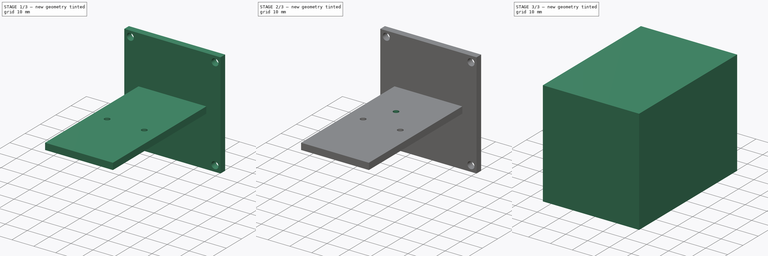
[diagram: build sequence overview — one tinted view per stage of 3, left to right]
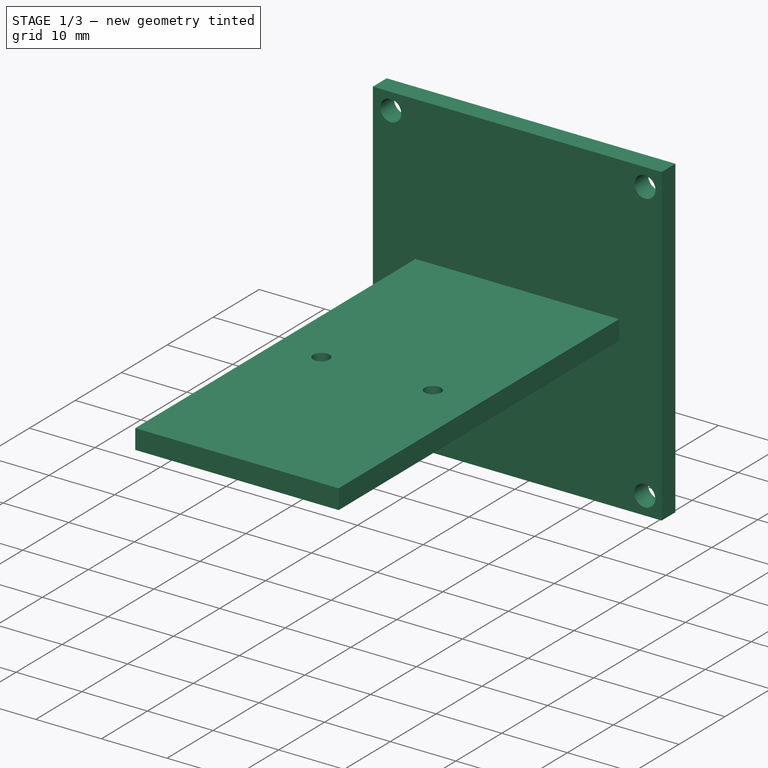
[diagram: stage 1 of 3 — iso view after this stage's code; geometry added in this stage tinted green]
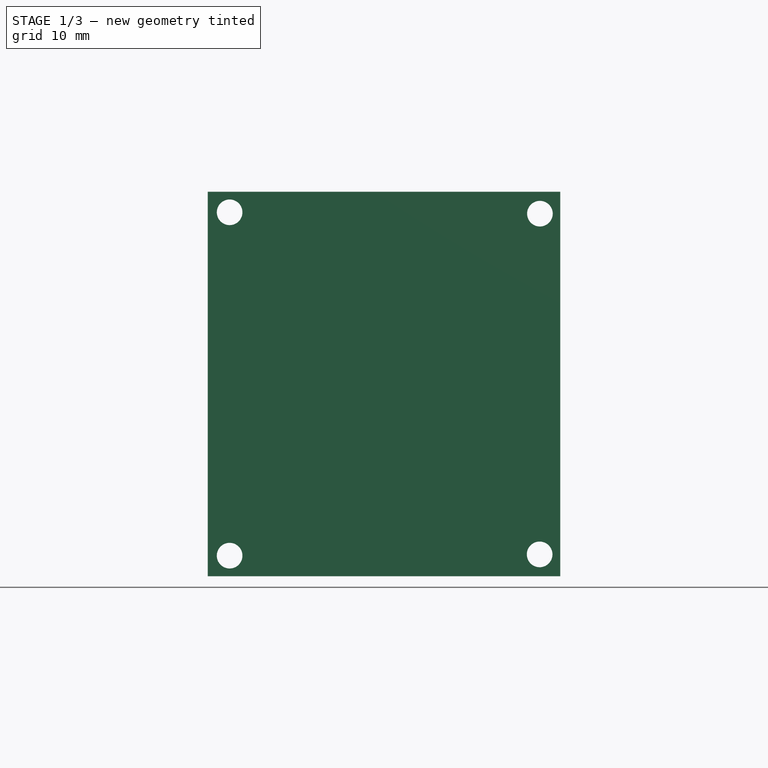
[diagram: stage 1 of 3 — front view after this stage's code; geometry added in this stage tinted green]
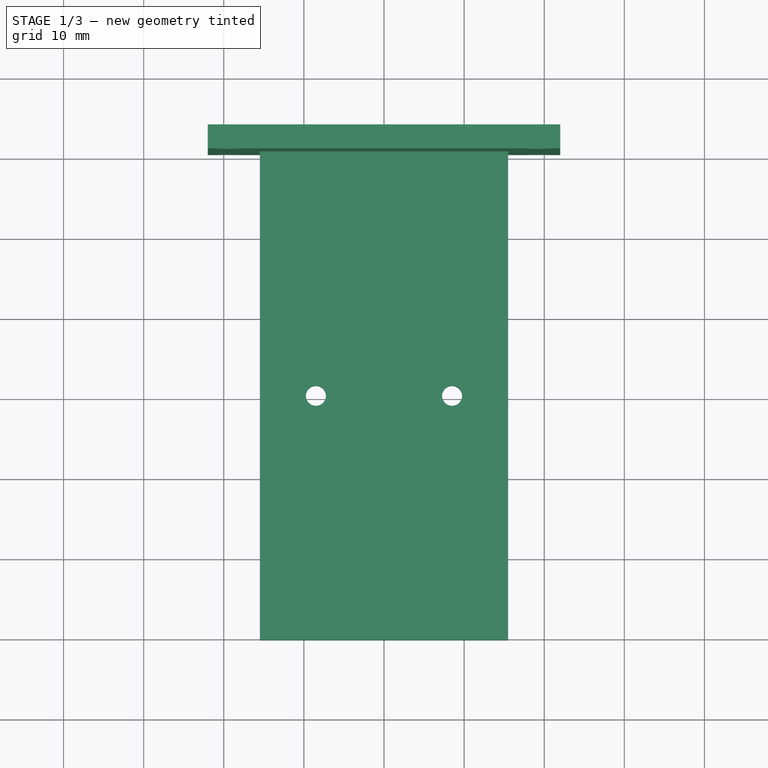
[diagram: stage 1 of 3 — top view after this stage's code; geometry added in this stage tinted green]
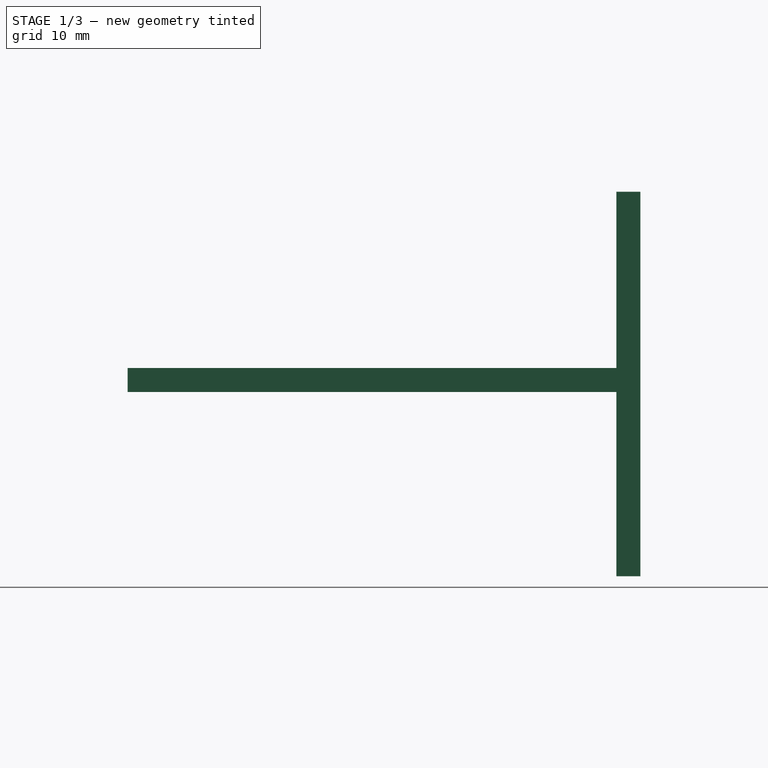
[diagram: stage 1 of 3 — right view after this stage's code; geometry added in this stage tinted green]
FCSTD DOCUMENT  (FreeCAD 1.0R39319 (Git))
Label: obudowa_zewn
License: All rights reserved
LicenseURL: https://en.wikipedia.org/wiki/All_rights_reserved
objects: Sketcher::SketchObject×8, PartDesign::SubShapeBinder×6, PartDesign::Pad×5, Part::Feature×3, PartDesign::Pocket×3, PartDesign::Body×2
note: 51 computed .brp shape members not serialized (recipe doc carries the construction recipe); baked Part::Feature solids carry a one-line shape summary decoded from their .brp

FEATURE [Part::Feature] Solid  label="Body"
  shape: bbox 35 x 61 x 16 mm, 126 faces (baked)
FEATURE [Part::Feature] Feature  label="stacja_pogodowa"
  Placement = pos=(83,40,-5) rot=(0,1,0;3.14159rad)
  shape: bbox 30.16 x 32 x 20.75 mm, 1912 faces, 90 solids (baked)
FEATURE [PartDesign::SubShapeBinder] Binder
  BindCopyOnChange = 0
  BindMode = 0
  ClaimChildren = false
  Context = -> Body [Binder.]
  Fuse = false
  MakeFace = true
  OffsetFill = false
  OffsetIntersection = false
  OffsetJoinType = 0
  OffsetOpenResult = false
  PartialLoad = false
  Refine = true
  Relative = true
  Support = -> [Solid[Face43]]
  _Version = 2
FEATURE [PartDesign::SubShapeBinder] Binder001
  BindCopyOnChange = 0
  BindMode = 0
  ClaimChildren = false
  Context = -> Body [Binder001.]
  Fuse = false
  MakeFace = true
  OffsetFill = false
  OffsetIntersection = false
  OffsetJoinType = 0
  OffsetOpenResult = false
  PartialLoad = false
  Refine = true
  Relative = true
  Support = -> [Feature[Edge4643]]
  _Version = 2
FEATURE [Sketcher::SketchObject] Sketch
  ArcFitTolerance = 1e-06
  AttachmentSupport = -> [Binder]
  ExternalGeometry = -> [Binder,Binder001]
  FullyConstrained = false
  MakeInternals = false
  MapMode = 5
  Placement = pos=(0,0,0) rot=(1,0,0;3.14159rad)
  sketch-geometry (15):
    g0: GeomPoint [constr] X=8.5 Y=0 Z=0
    g1: LineSegment [constr] StartX=17.5 StartY=28.5 StartZ=0 EndX=17.5 EndY=-28.5 EndZ=0
    g2: LineSegment [constr] StartX=-17.5 StartY=-28.5 StartZ=0 EndX=-17.5 EndY=28.5 EndZ=0
    g3: GeomPoint [constr] X=-8.5 Y=0 Z=0
    g4: Circle CenterX=-8.5 CenterY=0 CenterZ=0 NormalX=0 NormalY=0 NormalZ=1 AngleXU=0 Radius=1.25
    g5: Circle CenterX=8.5 CenterY=0 CenterZ=0 NormalX=0 NormalY=0 NormalZ=1 AngleXU=0 Radius=1.25
    g6: LineSegment StartX=-15.5 StartY=28.5 StartZ=0 EndX=-15.5 EndY=-28.5 EndZ=0
    g7: LineSegment StartX=15.5 StartY=-28.5 StartZ=0 EndX=15.5 EndY=28.5 EndZ=0
    g8: Circle [constr] CenterX=-2.2 CenterY=-12.5 CenterZ=0 NormalX=0 NormalY=0 NormalZ=1 AngleXU=0 Radius=1.25
    g9: LineSegment StartX=-15.5 StartY=-28.5 StartZ=0 EndX=-15.5 EndY=-30.5 EndZ=0
    g10: LineSegment StartX=15.5 StartY=-28.5 StartZ=0 EndX=15.5 EndY=-30.5 EndZ=0
    g11: LineSegment StartX=-15.5 StartY=-30.5 StartZ=0 EndX=15.5 EndY=-30.5 EndZ=0
    g12: LineSegment StartX=-15.5 StartY=28.5 StartZ=0 EndX=-15.5 EndY=30.5 EndZ=0
    g13: LineSegment StartX=15.5 StartY=28.5 StartZ=0 EndX=15.5 EndY=30.5 EndZ=0
    g14: LineSegment StartX=-15.5 StartY=30.5 StartZ=0 EndX=15.5 EndY=30.5 EndZ=0
  constraints (25):
    c: PointOnObject(g0,g-1)
    c: Coincident(g1,g-3)
    c: Coincident(g1,g-3)
    c: Coincident(g2,g-5)
    c: Coincident(g2,g-5)
    c: Distance(g0,g1) = 9
    c: PointOnObject(g3,g-1)
    c: Distance(g3,g2) = 9
    c: Diameter(g4) = 2.5
    c: Coincident(g4,g3)
    c: Diameter(g5) = 2.5
    c: Coincident(g5,g0)
    c: Vertical(g6)
    c: Vertical(g7)
    c: Coincident(g6,g-7)
    c: Diameter(g8) = 2.5
    c: Coincident(g8,g-10)
    c: Coincident(g9,g6)
    c: Coincident(g9,g-4)
    c: Coincident(g10,g-9)
    c: Coincident(g12,g6)
    c: Coincident(g12,g-7)
    c: Coincident(g13,g7)
    c: Coincident(g13,g-8)
    c: Vertical(g13)
FEATURE [PartDesign::Pad] Pad
  Direction = (0,0,-1)
  Length = 3
  Length2 = 10
  Profile = -> Sketch
  ReferenceAxis = -> Sketch [N_Axis]
  Refine = true
  Suppressed = false
  Type = 0
FEATURE [PartDesign::SubShapeBinder] Binder002
  BindCopyOnChange = 0
  BindMode = 0
  ClaimChildren = false
  Context = -> Body [Binder002.]
  Fuse = false
  MakeFace = true
  OffsetFill = false
  OffsetIntersection = false
  OffsetJoinType = 0
  OffsetOpenResult = false
  PartialLoad = false
  Refine = true
  Relative = true
  Support = -> [Feature[Face183]]
  _Version = 2
FEATURE [PartDesign::SubShapeBinder] Binder003
  BindCopyOnChange = 0
  BindMode = 0
  ClaimChildren = false
  Context = -> Body [Binder003.]
  Fuse = false
  MakeFace = true
  OffsetFill = false
  OffsetIntersection = false
  OffsetJoinType = 0
  OffsetOpenResult = false
  PartialLoad = false
  Refine = true
  Relative = true
  Support = -> [Feature[Edge1314]]
  _Version = 2
FEATURE [Sketcher::SketchObject] Sketch002
  ArcFitTolerance = 1e-06
  AttachmentSupport = -> [Pad]
  ExternalGeometry = -> [Binder002,Binder003]
  FullyConstrained = true
  MakeInternals = false
  MapMode = 5
  Placement = pos=(0,30.5,0) rot=(0,0.707107,0.707107;3.14159rad)
  sketch-geometry (9):
    g0: LineSegment [constr] StartX=0 StartY=0 StartZ=0 EndX=0 EndY=22 EndZ=0
    g1: LineSegment [constr] StartX=0 StartY=0 StartZ=0 EndX=0 EndY=-26 EndZ=0
    g2: LineSegment [constr] StartX=0 StartY=22 StartZ=0 EndX=20 EndY=22 EndZ=0
    g3: LineSegment [constr] StartX=0 StartY=22 StartZ=0 EndX=-22 EndY=22 EndZ=0
    g4: LineSegment [constr] StartX=0 StartY=-26 StartZ=0 EndX=22 EndY=-26 EndZ=0
    g5: LineSegment StartX=-22 StartY=22 StartZ=0 EndX=-22 EndY=-26 EndZ=0
    g6: LineSegment StartX=-22 StartY=-26 StartZ=0 EndX=22 EndY=-26 EndZ=0
    g7: LineSegment StartX=22 StartY=-26 StartZ=0 EndX=22 EndY=22 EndZ=0
    g8: LineSegment StartX=22 StartY=22 StartZ=0 EndX=-22 EndY=22 EndZ=0
  constraints (25):
    c: Distance(g0) = 22
    c: Coincident(g0,g-1)
    c: PointOnObject(g0,g-2)
    c: Distance(g1) = 26
    c: Coincident(g1,g0)
    c: PointOnObject(g1,g-2)
    c: Distance(g2) = 20
    c: Coincident(g2,g0)
    c: Horizontal(g2)
    c: Distance(g3) = 22
    c: Coincident(g3,g0)
    c: Horizontal(g3)
    c: Distance(g4) = 22
    c: Coincident(g4,g1)
    c: Horizontal(g4)
    c: Coincident(g5,g6)
    c: Coincident(g6,g7)
    c: Coincident(g7,g8)
    c: Coincident(g8,g5)
    c: Vertical(g5)
    c: Vertical(g7)
    c: Horizontal(g6)
    c: Horizontal(g8)
    c: Coincident(g5,g3)
    c: Coincident(g6,g4)
FEATURE [PartDesign::Pad] Pad001
  BaseFeature = -> Pad
  Direction = (0,1,-2e-16)
  Length = 3
  Length2 = 10
  Profile = -> Sketch002
  ReferenceAxis = -> Sketch002 [N_Axis]
  Refine = true
  Suppressed = false
  Type = 0
FEATURE [PartDesign::Body] Body001  label="obudowa"
  AllowCompound = false
  Group = -> [Binder004,Sketch003,Pad002,Sketch004,Pad003,Sketch005,Pocket]
  Origin = -> Origin001
  Tip = -> Pocket
FEATURE [PartDesign::SubShapeBinder] Binder005
  BindCopyOnChange = 0
  BindMode = 0
  ClaimChildren = false
  Context = -> Body [Binder005.]
  Fuse = false
  MakeFace = true
  OffsetFill = false
  OffsetIntersection = false
  OffsetJoinType = 0
  OffsetOpenResult = false
  PartialLoad = false
  Refine = true
  Relative = true
  Support = -> [Solid001[Face1]]
  _Version = 2
FEATURE [Sketcher::SketchObject] Sketch006
  ArcFitTolerance = 1e-06
  AttachmentSupport = -> [Pad001]
  ExternalGeometry = -> [Binder005]
  FullyConstrained = true
  MakeInternals = false
  MapMode = 5
  Placement = pos=(0,30.5,0) rot=(1,0,0;1.5708rad)
  sketch-geometry (4):
    g0: Circle CenterX=-19.2712 CenterY=19.4324 CenterZ=0 NormalX=0 NormalY=0 NormalZ=1 AngleXU=0 Radius=1.6
    g1: Circle CenterX=19.4624 CenterY=19.2604 CenterZ=0 NormalX=0 NormalY=0 NormalZ=1 AngleXU=0 Radius=1.6
    g2: Circle CenterX=19.4284 CenterY=-23.2712 CenterZ=0 NormalX=0 NormalY=0 NormalZ=1 AngleXU=0 Radius=1.6
    g3: Circle CenterX=-19.2712 CenterY=-23.4284 CenterZ=0 NormalX=0 NormalY=0 NormalZ=1 AngleXU=0 Radius=1.6
  constraints (8):
    c: Diameter(g0) = 3.2
    c: Coincident(g0,g-3)
    c: Diameter(g1) = 3.2
    c: Coincident(g1,g-4)
    c: Diameter(g2) = 3.2
    c: Coincident(g2,g-5)
    c: Diameter(g3) = 3.2
    c: Coincident(g3,g-6)
FEATURE [PartDesign::Pocket] Pocket001
  BaseFeature = -> Pad001
  Direction = (0,1,-2e-16)
  Length = 3
  Length2 = 5
  Profile = -> Sketch006
  ReferenceAxis = -> Sketch006 [N_Axis]
  Refine = true
  Suppressed = false
  Type = 0
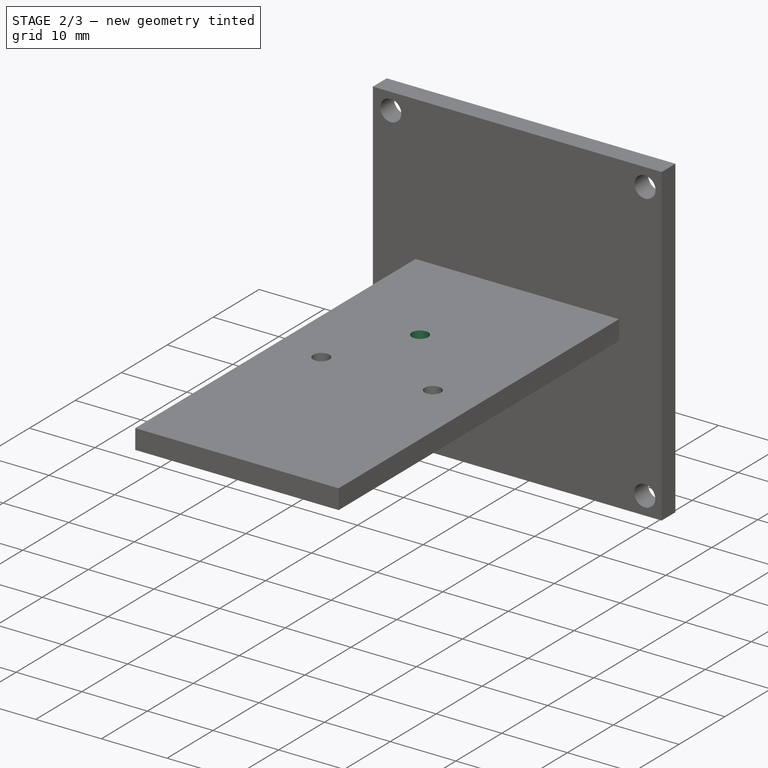
[diagram: stage 2 of 3 — iso view after this stage's code; geometry added in this stage tinted green]
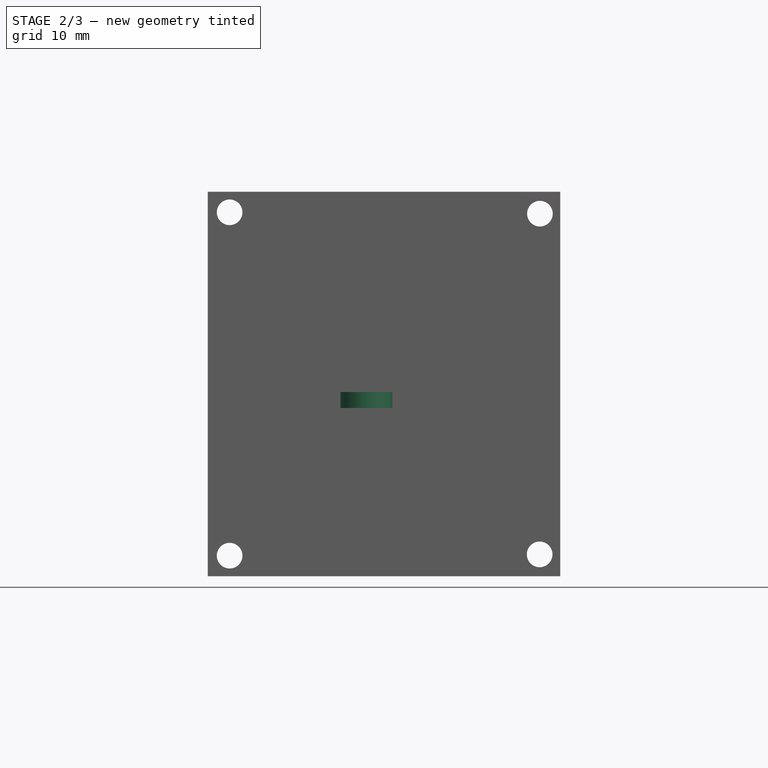
[diagram: stage 2 of 3 — front view after this stage's code; geometry added in this stage tinted green]
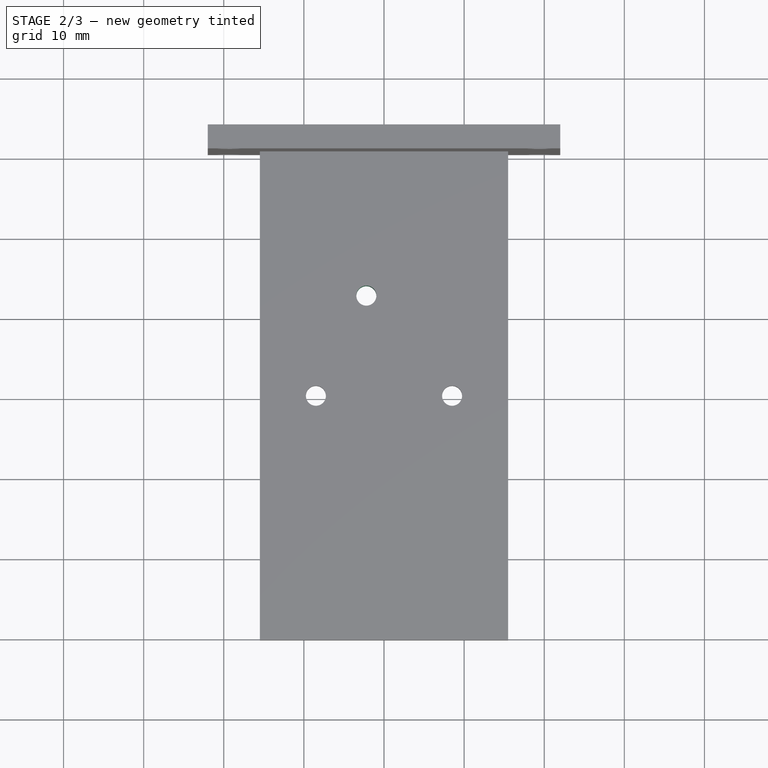
[diagram: stage 2 of 3 — top view after this stage's code; geometry added in this stage tinted green]
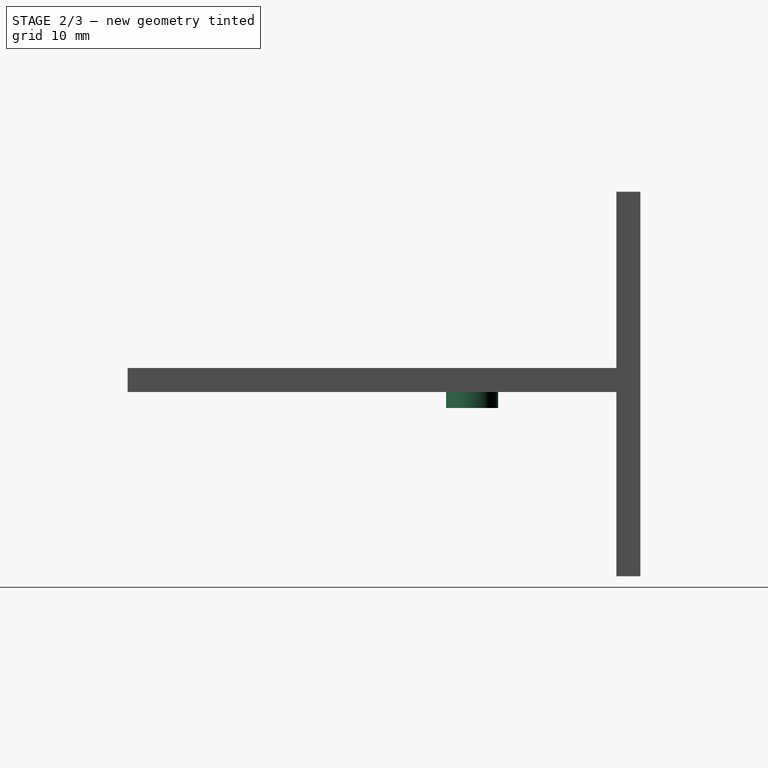
[diagram: stage 2 of 3 — right view after this stage's code; geometry added in this stage tinted green]
FEATURE [Part::Feature] Solid001  label="obudowa001"
  shape: bbox 44 x 64 x 48 mm, 23 faces (baked)
FEATURE [Sketcher::SketchObject] Sketch007
  ArcFitTolerance = 1e-06
  AttachmentSupport = -> [Pocket001]
  ExternalGeometry = -> [Binder001]
  FullyConstrained = true
  MakeInternals = false
  MapMode = 5
  Placement = pos=(0,0,-3) rot=(1,0,0;3.14159rad)
  sketch-geometry (1):
    g0: Circle CenterX=-2.2 CenterY=-12.5 CenterZ=0 NormalX=0 NormalY=0 NormalZ=1 AngleXU=0 Radius=3.25
  constraints (2):
    c: Diameter(g0) = 6.5
    c: Coincident(g0,g-3)
FEATURE [PartDesign::Pad] Pad004
  BaseFeature = -> Pocket001
  Direction = (0,0,-1)
  Length = 2
  Length2 = 10
  Profile = -> Sketch007
  ReferenceAxis = -> Sketch007 [N_Axis]
  Refine = true
  Suppressed = false
  Type = 0
FEATURE [Sketcher::SketchObject] Sketch008
  ArcFitTolerance = 1e-06
  AttachmentSupport = -> [Pad004]
  ExternalGeometry = -> [Binder001]
  FullyConstrained = true
  MakeInternals = false
  MapMode = 5
  Placement = pos=(0,0,-5) rot=(1,0,0;3.14159rad)
  sketch-geometry (1):
    g0: Circle CenterX=-2.2 CenterY=-12.5 CenterZ=0 NormalX=0 NormalY=0 NormalZ=1 AngleXU=0 Radius=1.25
  constraints (2):
    c: Diameter(g0) = 2.5
    c: Coincident(g0,g-3)
FEATURE [PartDesign::Pocket] Pocket002
  BaseFeature = -> Pad004
  Direction = (0,0,1)
  Length = 5
  Length2 = 5
  Profile = -> Sketch008
  ReferenceAxis = -> Sketch008 [N_Axis]
  Refine = true
  Suppressed = false
  Type = 0
FEATURE [PartDesign::Body] Body  label="Zawartość"
  AllowCompound = false
  Group = -> [Binder,Sketch,Binder001,Pad,Binder002,Sketch002,Pad001,Binder003,Binder005,Sketch006,Pocket001,Sketch007,Pad004,Sketch008,Pocket002]
  Origin = -> Origin
  Tip = -> Pocket002
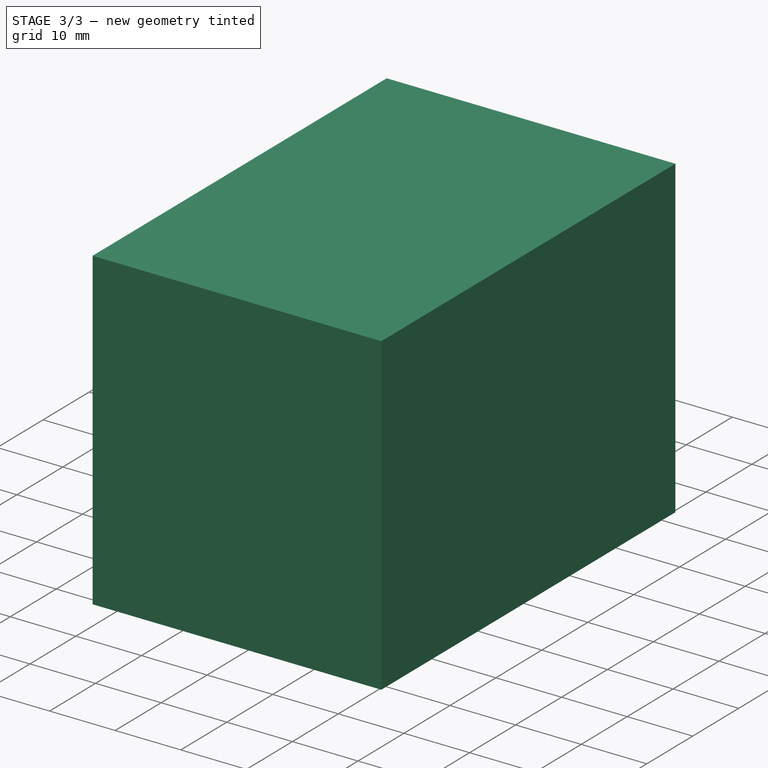
[diagram: stage 3 of 3 — iso view after this stage's code; geometry added in this stage tinted green]
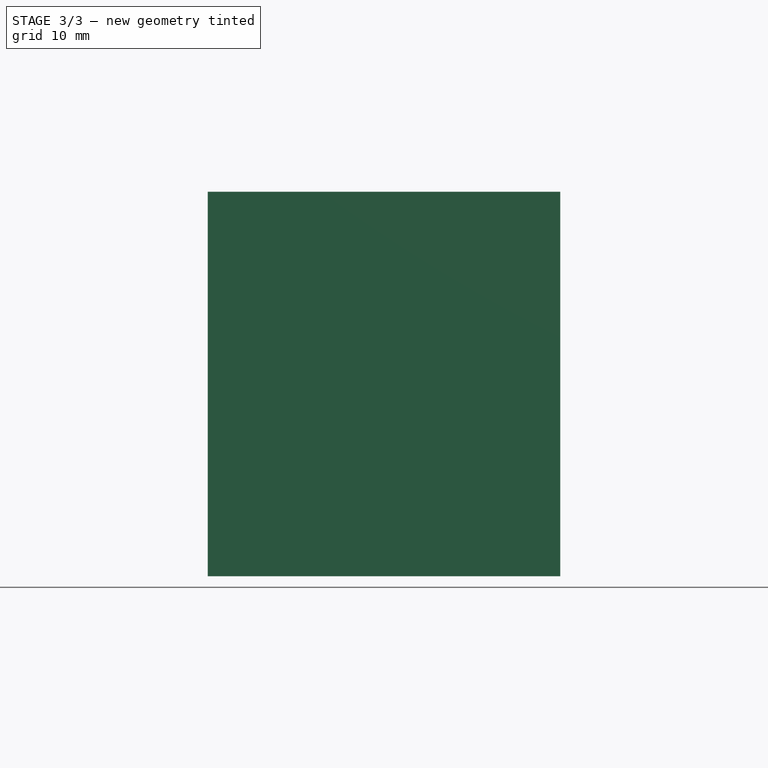
[diagram: stage 3 of 3 — front view after this stage's code; geometry added in this stage tinted green]
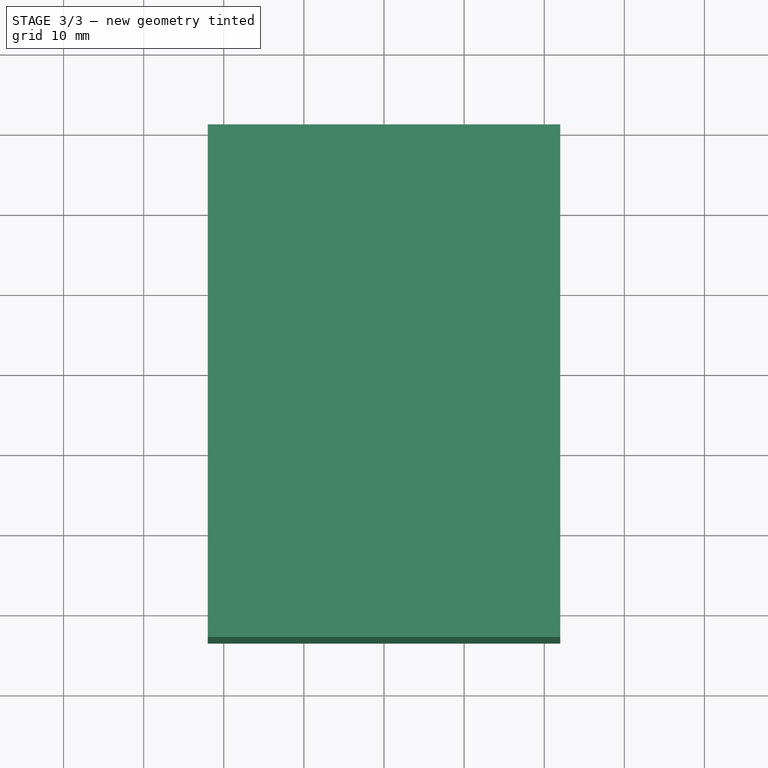
[diagram: stage 3 of 3 — top view after this stage's code; geometry added in this stage tinted green]
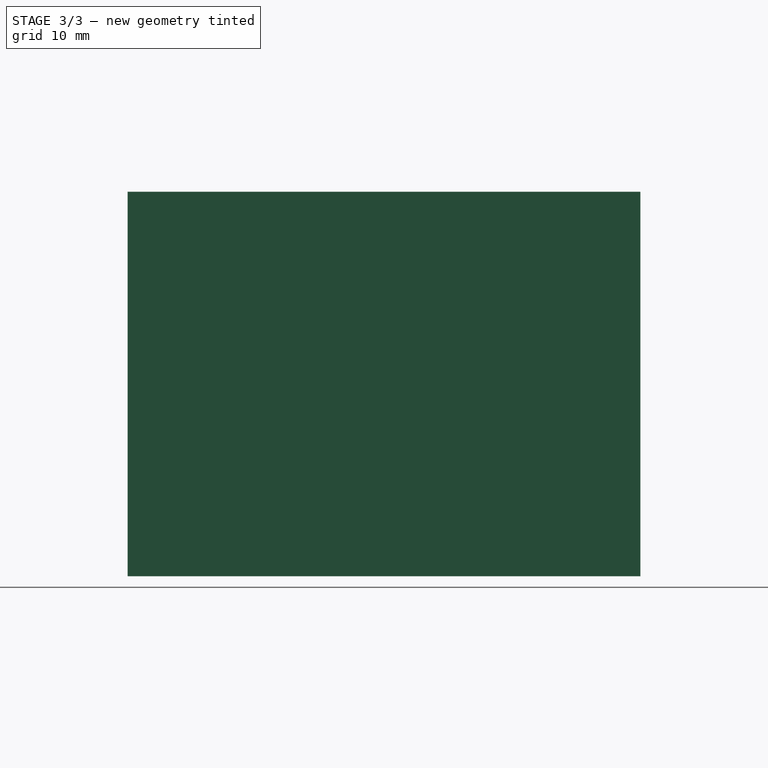
[diagram: stage 3 of 3 — right view after this stage's code; geometry added in this stage tinted green]
FEATURE [PartDesign::SubShapeBinder] Binder004
  BindCopyOnChange = 0
  BindMode = 0
  ClaimChildren = false
  Context = -> Body001 [Binder004.]
  Fuse = false
  MakeFace = true
  OffsetFill = false
  OffsetIntersection = false
  OffsetJoinType = 0
  OffsetOpenResult = false
  PartialLoad = false
  Refine = true
  Relative = true
  Support = -> [Body[Pad001.Face3]]
  _Version = 2
FEATURE [Sketcher::SketchObject] Sketch003
  ArcFitTolerance = 1e-06
  AttachmentSupport = -> [Binder004]
  ExternalGeometry = -> [Binder004]
  FullyConstrained = false
  MakeInternals = false
  MapMode = 5
  Placement = pos=(0,30.5,0) rot=(1,0,0;1.5708rad)
  sketch-geometry (14):
    g0: LineSegment StartX=-22 StartY=22 StartZ=0 EndX=-22 EndY=-26 EndZ=0
    g1: LineSegment StartX=-22 StartY=-26 StartZ=0 EndX=22 EndY=-26 EndZ=0
    g2: LineSegment StartX=22 StartY=-26 StartZ=0 EndX=22 EndY=22 EndZ=0
    g3: LineSegment StartX=22 StartY=22 StartZ=0 EndX=-22 EndY=22 EndZ=0
    g4: LineSegment StartX=-16.5 StartY=-23 StartZ=0 EndX=16.5 EndY=-23 EndZ=0
    g5: LineSegment StartX=16.5 StartY=19 StartZ=0 EndX=-16.5 EndY=19 EndZ=0
    g6: LineSegment [constr] StartX=-22 StartY=22 StartZ=0 EndX=22 EndY=-26 EndZ=0
    g7: GeomPoint [constr] X=-2e-16 Y=-2 Z=0
    g8: ArcOfCircle CenterX=-19 CenterY=19 CenterZ=0 NormalX=0 NormalY=0 NormalZ=1 AngleXU=0 Radius=2.5 StartAngle=4.71239 EndAngle=6.28318
    g9: ArcOfCircle CenterX=19 CenterY=19 CenterZ=0 NormalX=0 NormalY=0 NormalZ=1 AngleXU=0 Radius=2.5 StartAngle=3.14159 EndAngle=4.71239
    g10: ArcOfCircle CenterX=19 CenterY=-23 CenterZ=0 NormalX=0 NormalY=0 NormalZ=1 AngleXU=0 Radius=2.5 StartAngle=1.5708 EndAngle=3.14159
    g11: ArcOfCircle CenterX=-19 CenterY=-23 CenterZ=0 NormalX=0 NormalY=0 NormalZ=1 AngleXU=0 Radius=2.5 StartAngle=0 EndAngle=1.5708
    g12: LineSegment StartX=-19 StartY=16.5 StartZ=0 EndX=-19 EndY=-20.5 EndZ=0
    g13: LineSegment StartX=19 StartY=-20.5 StartZ=0 EndX=19 EndY=16.5 EndZ=0
  constraints (29):
    c: Coincident(g0,g1)
    c: Coincident(g1,g2)
    c: Coincident(g2,g3)
    c: Coincident(g3,g0)
    c: Vertical(g0)
    c: Vertical(g2)
    c: Horizontal(g1)
    c: Horizontal(g3)
    c: Coincident(g0,g-6)
    c: Coincident(g1,g-5)
    c: Horizontal(g4)
    c: Horizontal(g5)
    c: Distance(g8,g9) = 38
    c: Distance(g11,g8) = 42
    c: Coincident(g6,g0)
    c: Coincident(g6,g1)
    c: Symmetric(g6,g6,g7)
    c: Radius(g8) = 2.5
    c: PointOnObject(g8,g12)
    c: Radius(g9) = 2.5
    c: Radius(g10) = 2.5
    c: Radius(g11) = 2.5
    c: Coincident(g5,g8)
    c: PointOnObject(g12,g8)
    c: Coincident(g13,g9)
    c: Coincident(g5,g9)
    c: Coincident(g4,g10)
    c: Coincident(g4,g11)
    c: Coincident(g12,g11)
FEATURE [PartDesign::Pad] Pad002
  Direction = (0,-1,2e-16)
  Length = 61
  Length2 = 10
  Profile = -> Sketch003
  ReferenceAxis = -> Sketch003 [N_Axis]
  Refine = true
  Suppressed = false
  Type = 0
FEATURE [Sketcher::SketchObject] Sketch004
  ArcFitTolerance = 1e-06
  AttachmentSupport = -> [Pad002]
  ExternalGeometry = -> [Pad002]
  FullyConstrained = true
  MakeInternals = false
  MapMode = 5
  Placement = pos=(0,-30.5,0) rot=(1,0,0;1.5708rad)
  sketch-geometry (4):
    g0: LineSegment StartX=-22 StartY=22 StartZ=0 EndX=-22 EndY=-26 EndZ=0
    g1: LineSegment StartX=-22 StartY=-26 StartZ=0 EndX=22 EndY=-26 EndZ=0
    g2: LineSegment StartX=22 StartY=-26 StartZ=0 EndX=22 EndY=22 EndZ=0
    g3: LineSegment StartX=22 StartY=22 StartZ=0 EndX=-22 EndY=22 EndZ=0
  constraints (10):
    c: Coincident(g0,g1)
    c: Coincident(g1,g2)
    c: Coincident(g2,g3)
    c: Coincident(g3,g0)
    c: Vertical(g0)
    c: Vertical(g2)
    c: Horizontal(g1)
    c: Horizontal(g3)
    c: Coincident(g0,g-6)
    c: Coincident(g1,g-5)
FEATURE [PartDesign::Pad] Pad003
  BaseFeature = -> Pad002
  Direction = (0,-1,2e-16)
  Length = 3
  Length2 = 10
  Profile = -> Sketch004
  ReferenceAxis = -> Sketch004 [N_Axis]
  Refine = true
  Suppressed = false
  Type = 0
FEATURE [Sketcher::SketchObject] Sketch005
  ArcFitTolerance = 1e-06
  AttachmentSupport = -> [Pad003]
  ExternalGeometry = -> [Pad003]
  FullyConstrained = false
  MakeInternals = false
  MapMode = 5
  Placement = pos=(0,30.5,0) rot=(0,0.707107,0.707107;3.14159rad)
  sketch-geometry (12):
    g0: LineSegment [constr] StartX=-17.4238 StartY=17.0595 StartZ=0 EndX=-22 EndY=22 EndZ=0
    g1: GeomPoint [constr] X=-19.4624 Y=19.2604 Z=0
    g2: Circle CenterX=-19.4624 CenterY=19.2604 CenterZ=0 NormalX=0 NormalY=0 NormalZ=1 AngleXU=0 Radius=1.25
    g3: LineSegment [constr] StartX=22 StartY=22 StartZ=0 EndX=17.2375 EndY=17.227 EndZ=0
    g4: GeomPoint [constr] X=19.2712 Y=19.4324 Z=0
    g5: Circle CenterX=19.2712 CenterY=19.4324 CenterZ=0 NormalX=0 NormalY=0 NormalZ=1 AngleXU=0 Radius=1.25
    g6: LineSegment [constr] StartX=22 StartY=-26 StartZ=0 EndX=17.3006 EndY=-21.1664 EndZ=0
    g7: GeomPoint [constr] X=19.2712 Y=-23.4284 Z=0
    g8: Circle CenterX=19.2712 CenterY=-23.4284 CenterZ=0 NormalX=0 NormalY=0 NormalZ=1 AngleXU=0 Radius=1.25
    g9: LineSegment [constr] StartX=-22 StartY=-26 StartZ=0 EndX=-17.1664 EndY=-21.3006 EndZ=0
    g10: GeomPoint [constr] X=-19.4284 Y=-23.2712 Z=0
    g11: Circle CenterX=-19.4284 CenterY=-23.2712 CenterZ=0 NormalX=0 NormalY=0 NormalZ=1 AngleXU=0 Radius=1.25
  constraints (21):
    c: PointOnObject(g0,g-3)
    c: Coincident(g0,g-5)
    c: PointOnObject(g1,g0)
    c: Distance(g1,g0) = 3
    c: Diameter(g2) = 2.5
    c: Coincident(g2,g1)
    c: Coincident(g3,g-6)
    c: PointOnObject(g3,g-4)
    c: Distance(g4,g3) = 3
    c: Diameter(g5) = 2.5
    c: Coincident(g5,g4)
    c: Coincident(g6,g-7)
    c: PointOnObject(g6,g-8)
    c: Distance(g7,g6) = 3
    c: Diameter(g8) = 2.5
    c: Coincident(g8,g7)
    c: Coincident(g9,g-9)
    c: PointOnObject(g9,g-10)
    c: Distance(g10,g9) = 3
    c: Diameter(g11) = 2.5
    c: Coincident(g11,g10)
FEATURE [PartDesign::Pocket] Pocket
  BaseFeature = -> Pad003
  Direction = (0,-1,2e-16)
  Length = 30
  Length2 = 5
  Profile = -> Sketch005
  ReferenceAxis = -> Sketch005 [N_Axis]
  Refine = true
  Suppressed = false
  Type = 0
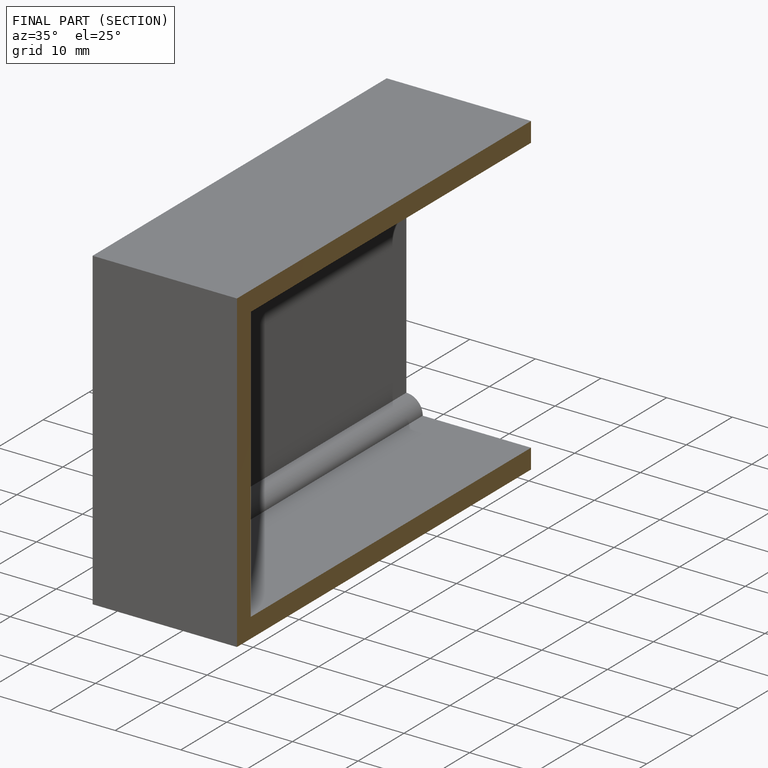
[diagram: finished part — half-section view (interior)]
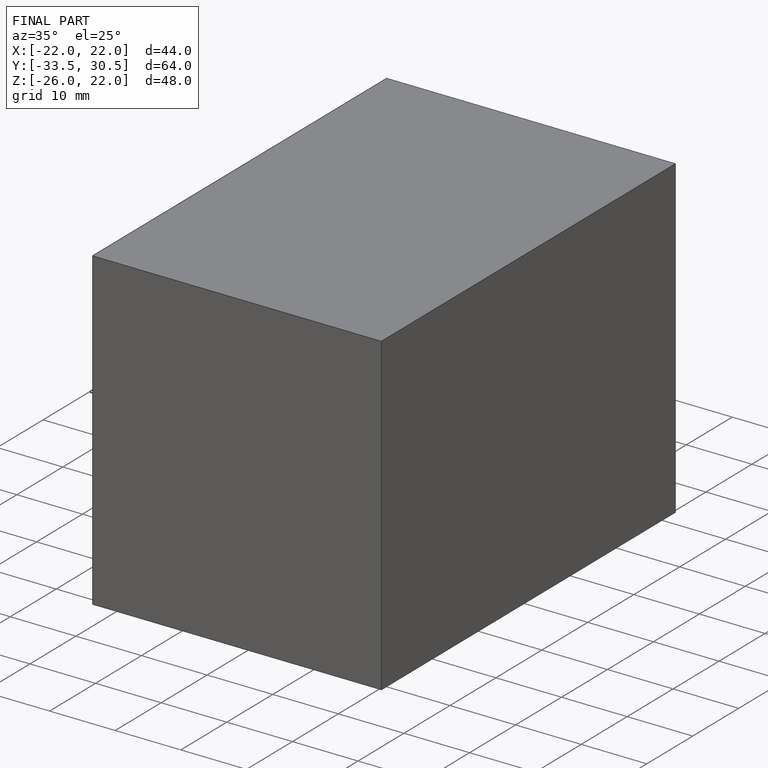
[diagram: finished part — iso view with bounding-box wireframe]
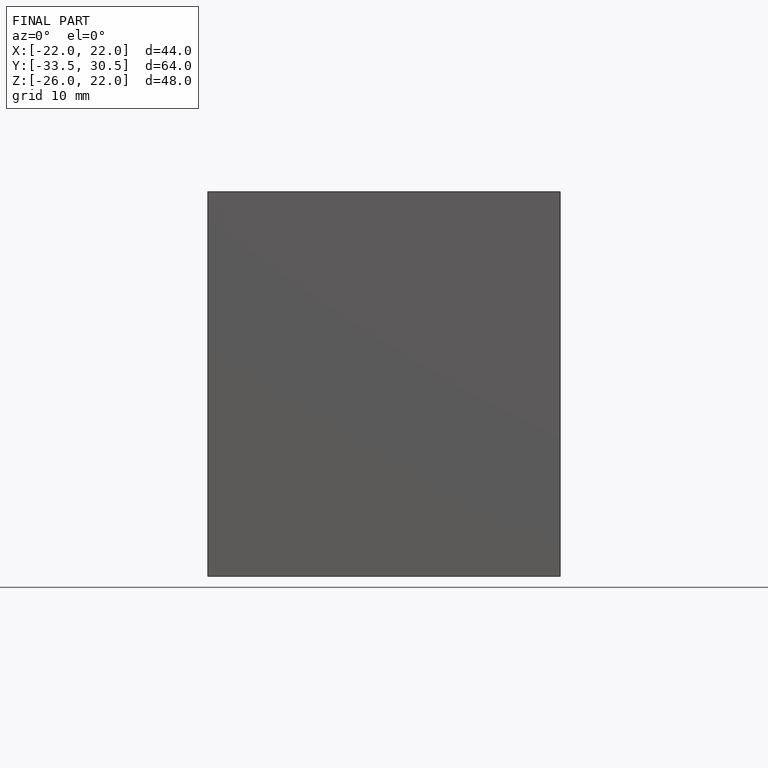
[diagram: finished part — front view with bounding-box wireframe]
